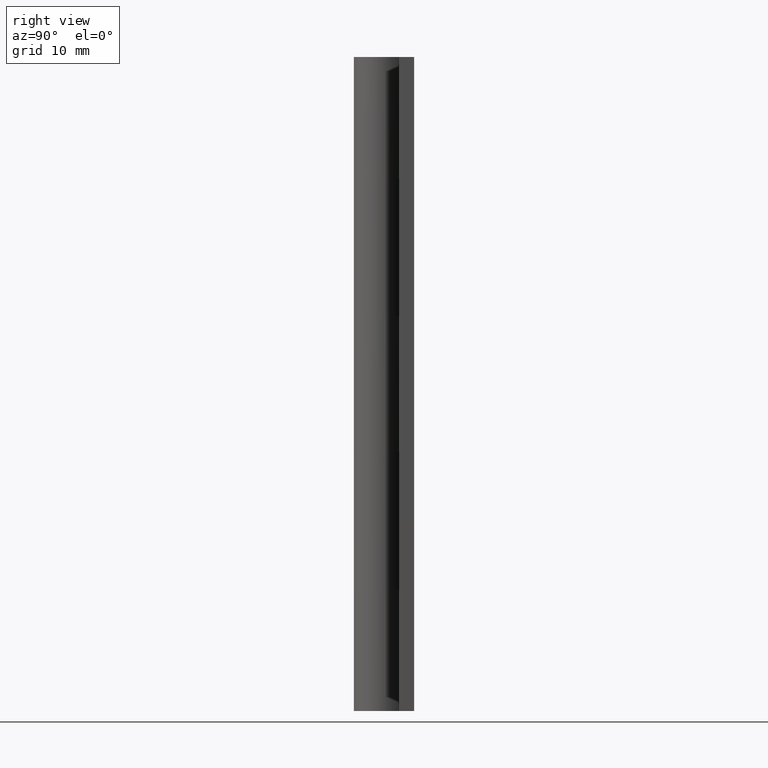
[diagram: clean part render]
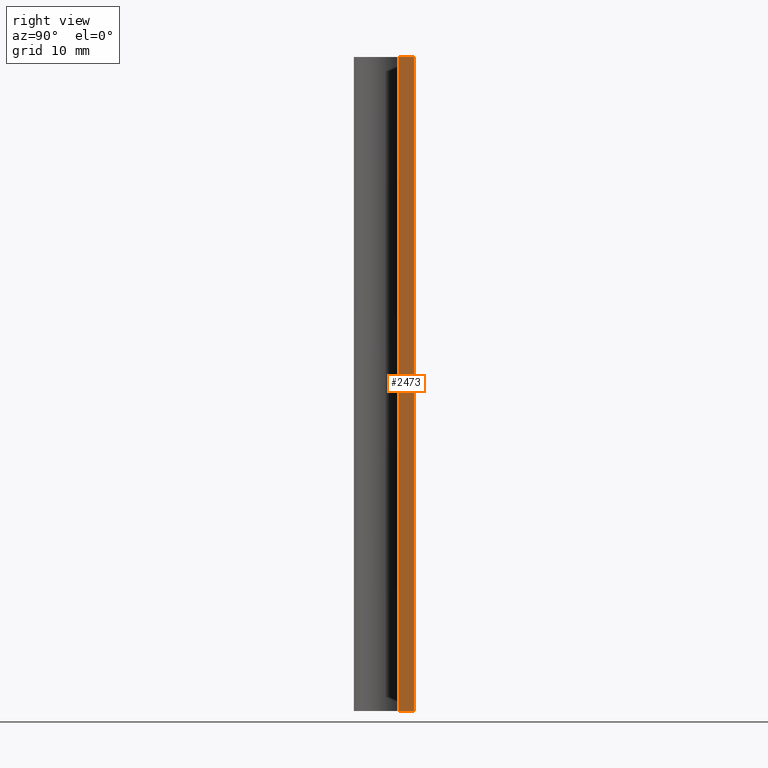
[diagram: same view with one face highlighted and labeled with its STEP entity id]
A machine part, right view. The second image highlights one B-rep face of the part: STEP entity #2473.
In plain terms, the highlighted face is a freeform B-spline surface patch.
Its self-contained STEP definition (entity closure, byte-faithful):
#2269=CARTESIAN_POINT('',(16.0,1.500000000000000,65.0));
#2270=VERTEX_POINT('',#2269);
#2276=CARTESIAN_POINT('',(16.0,3.0,65.0));
#2277=VERTEX_POINT('',#2276);
#2278=CARTESIAN_POINT('',(16.0,1.500000000000000,65.0));
#2279=CARTESIAN_POINT('',(16.0,3.0,65.0));
#2280=QUASI_UNIFORM_CURVE('',1,(#2278,#2279),.UNSPECIFIED.,.F.,.U.);
#2281=EDGE_CURVE('',#2270,#2277,#2280,.T.);
#2375=CARTESIAN_POINT('',(16.0,3.0,0.0));
#2376=VERTEX_POINT('',#2375);
#2382=CARTESIAN_POINT('',(16.0,1.500000000000000,0.0));
#2383=VERTEX_POINT('',#2382);
#2384=CARTESIAN_POINT('',(16.0,1.500000000000000,0.0));
#2385=CARTESIAN_POINT('',(16.0,3.0,0.0));
#2386=QUASI_UNIFORM_CURVE('',1,(#2384,#2385),.UNSPECIFIED.,.F.,.U.);
#2387=EDGE_CURVE('',#2383,#2376,#2386,.T.);
#2454=CARTESIAN_POINT('',(16.0,1.425075002907291,68.246749874017397));
#2455=CARTESIAN_POINT('',(16.0,1.425075002907291,-3.246751617453247));
#2456=CARTESIAN_POINT('',(16.0,3.074925037325845,68.246749874017397));
#2457=CARTESIAN_POINT('',(16.0,3.074925037325845,-3.246751617453247));
#2458=B_SPLINE_SURFACE_WITH_KNOTS('',1,1,((#2454,#2456),(#2455,#2457)),.UNSPECIFIED.,.F.,.F.,.U.,(2,2),(2,2),(0.0,71.493501491470639),(0.041708334948495,0.958291687403247),.UNSPECIFIED.);
#2459=ORIENTED_EDGE('',*,*,#2281,.F.);
#2460=CARTESIAN_POINT('',(16.0,1.500000000000000,0.0));
#2461=CARTESIAN_POINT('',(16.0,1.500000000000000,65.0));
#2462=QUASI_UNIFORM_CURVE('',1,(#2460,#2461),.UNSPECIFIED.,.F.,.U.);
#2463=EDGE_CURVE('',#2383,#2270,#2462,.T.);
#2464=ORIENTED_EDGE('',*,*,#2463,.F.);
#2465=ORIENTED_EDGE('',*,*,#2387,.T.);
#2466=CARTESIAN_POINT('',(16.0,3.0,0.0));
#2467=CARTESIAN_POINT('',(16.0,3.0,65.0));
#2468=QUASI_UNIFORM_CURVE('',1,(#2466,#2467),.UNSPECIFIED.,.F.,.U.);
#2469=EDGE_CURVE('',#2376,#2277,#2468,.T.);
#2470=ORIENTED_EDGE('',*,*,#2469,.T.);
#2471=EDGE_LOOP('',(#2459,#2464,#2465,#2470));
#2472=FACE_OUTER_BOUND('',#2471,.T.);
#2473=ADVANCED_FACE('',(#2472),#2458,.T.);